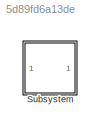
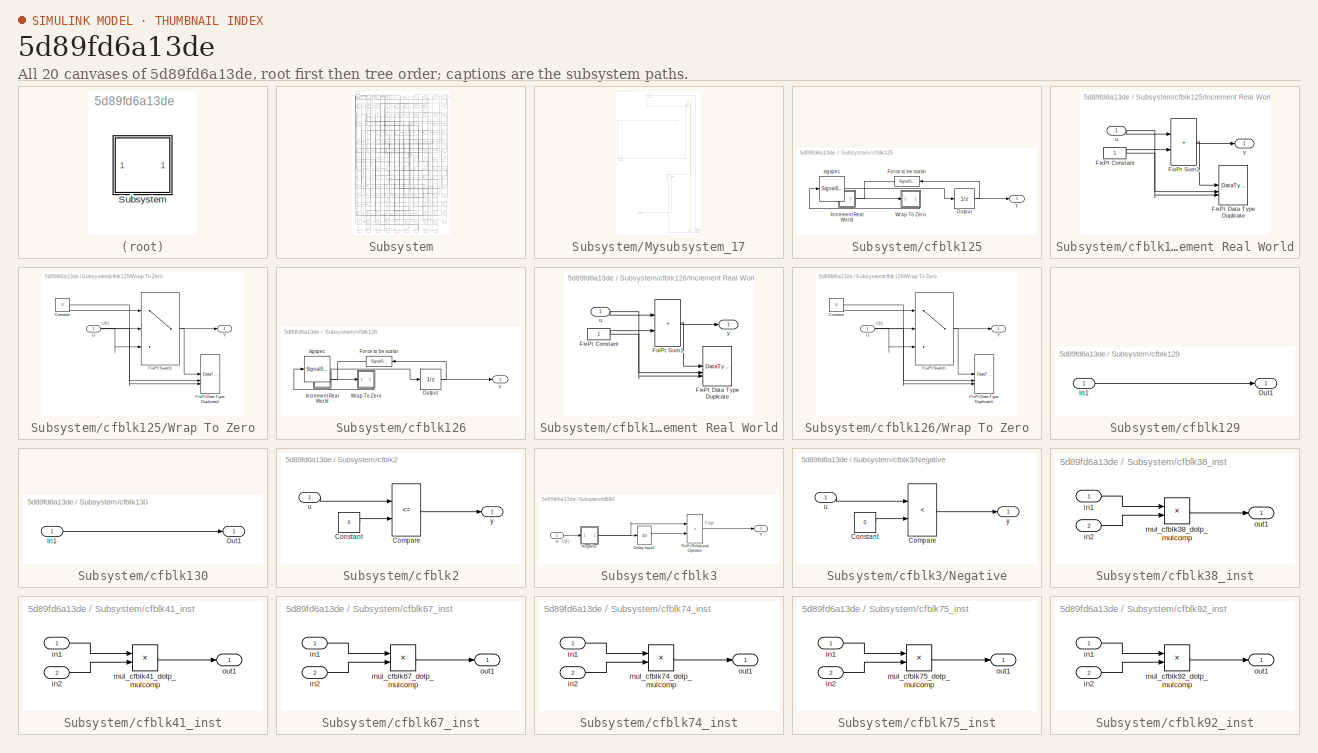
[diagram: thumbnail index - all 20 canvases of the model, root first then tree order]
MODEL slx_5d89fd6a13de
KIND model
CONFIG AbsTol = auto
CONFIG EnableMultiTasking = off
CONFIG FixedStep = auto
CONFIG MaxStep = auto
CONFIG MinStep = auto
CONFIG RelTol = 1e-3
CONFIG SampleTimeConstraint = Unconstrained
CONFIG SolverName = VariableStepAuto
CONFIG StartTime = 0.0
CONFIG StopTime = 10.0
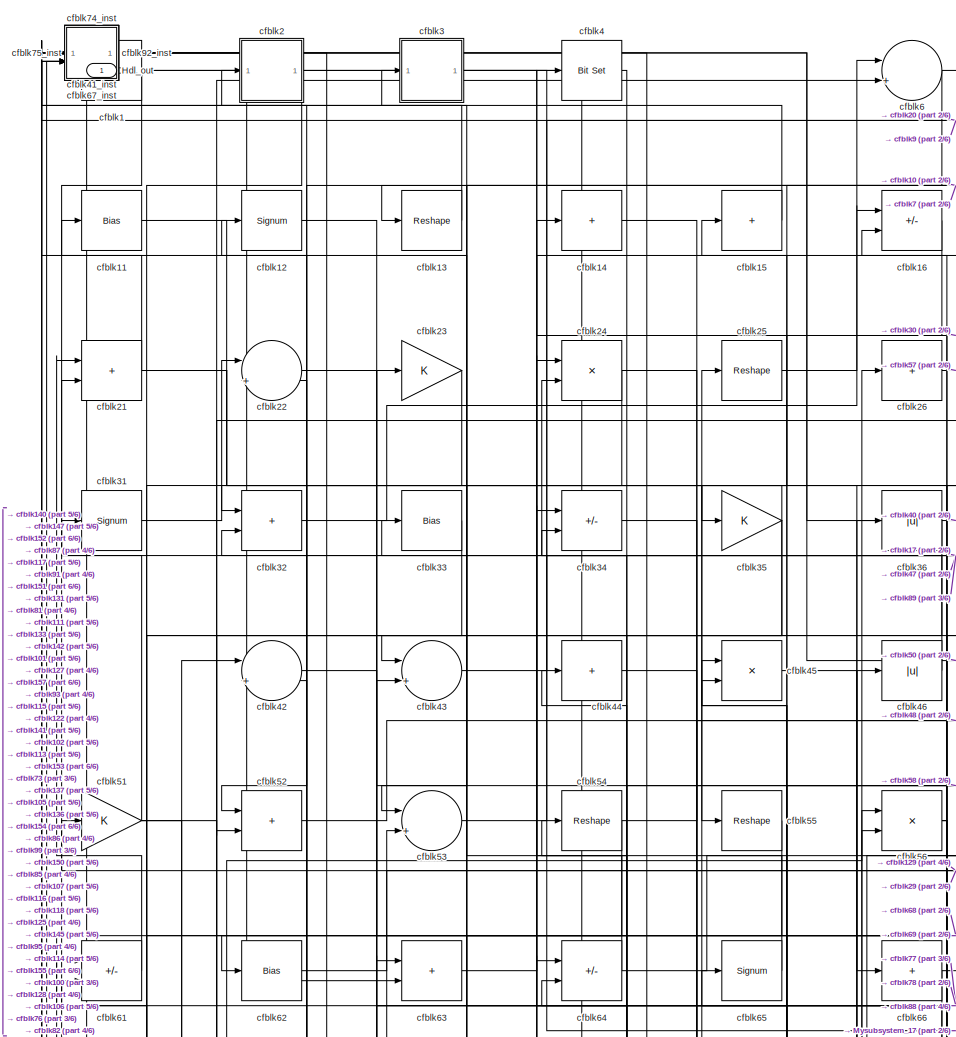
[diagram: Subsystem - part 1/6, top left region]
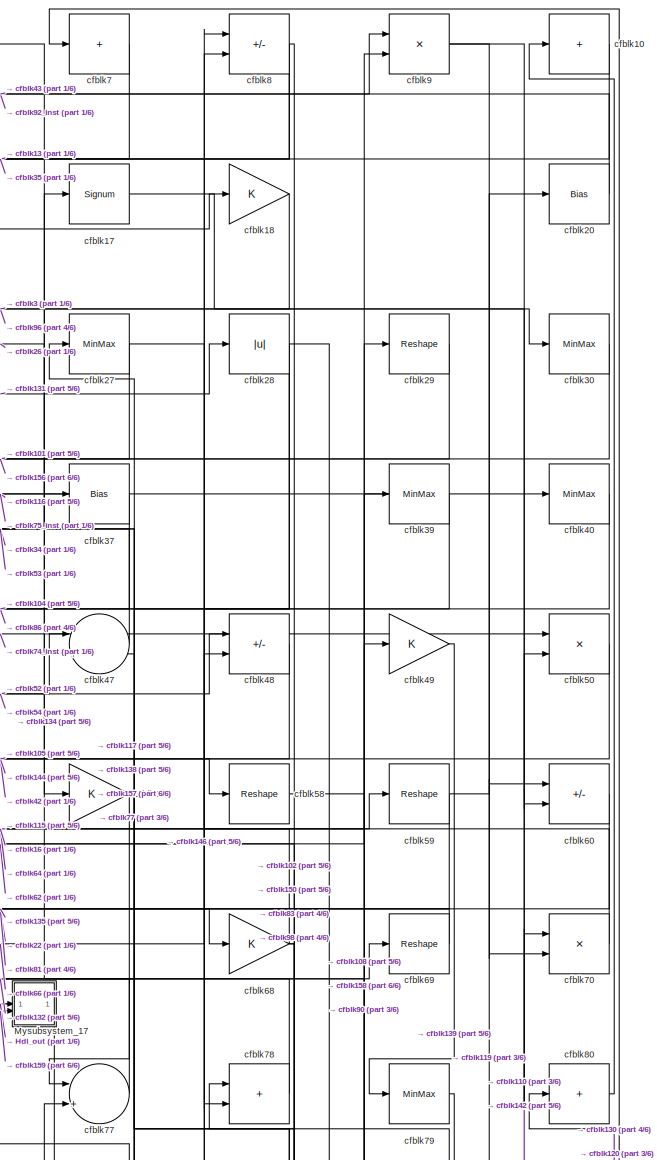
[diagram: Subsystem - part 2/6, top right region]
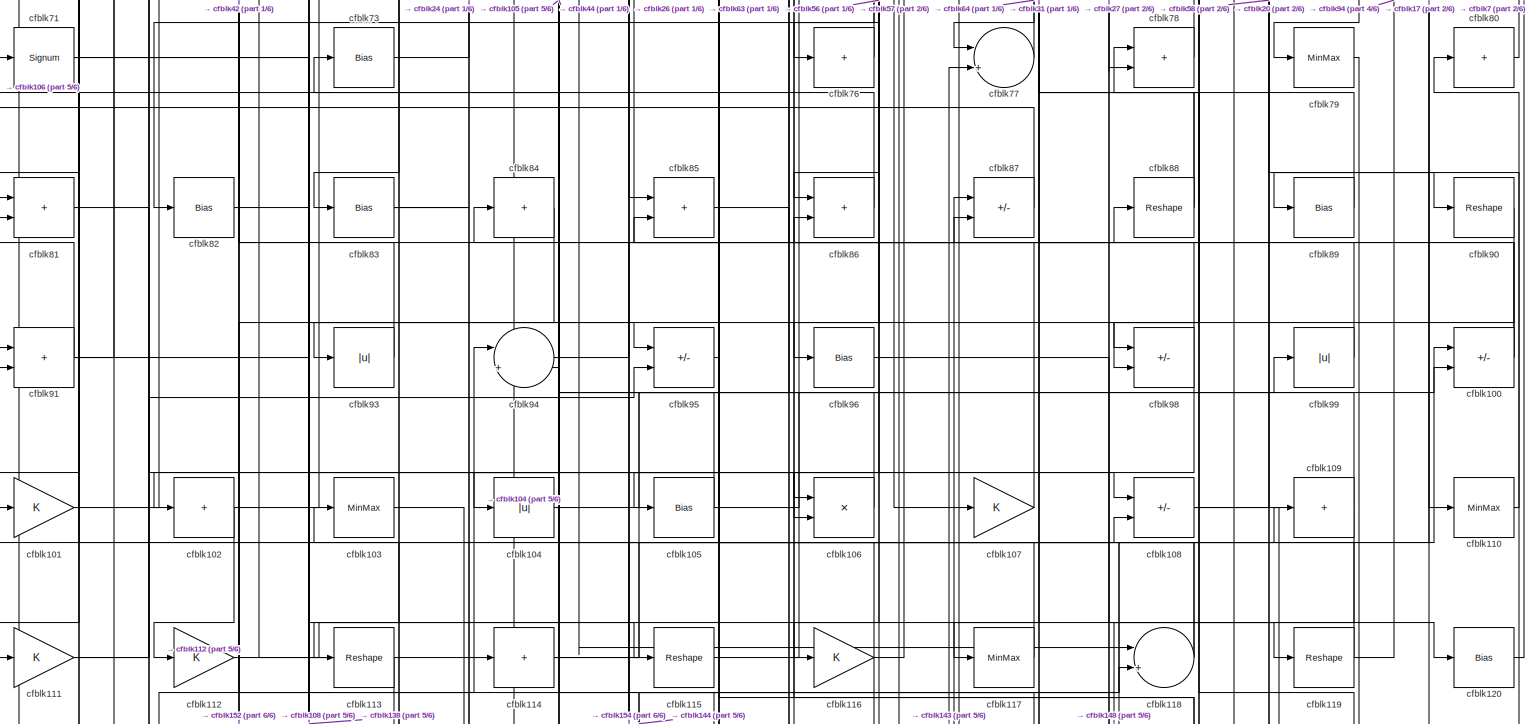
[diagram: Subsystem - part 3/6, full width, middle band]
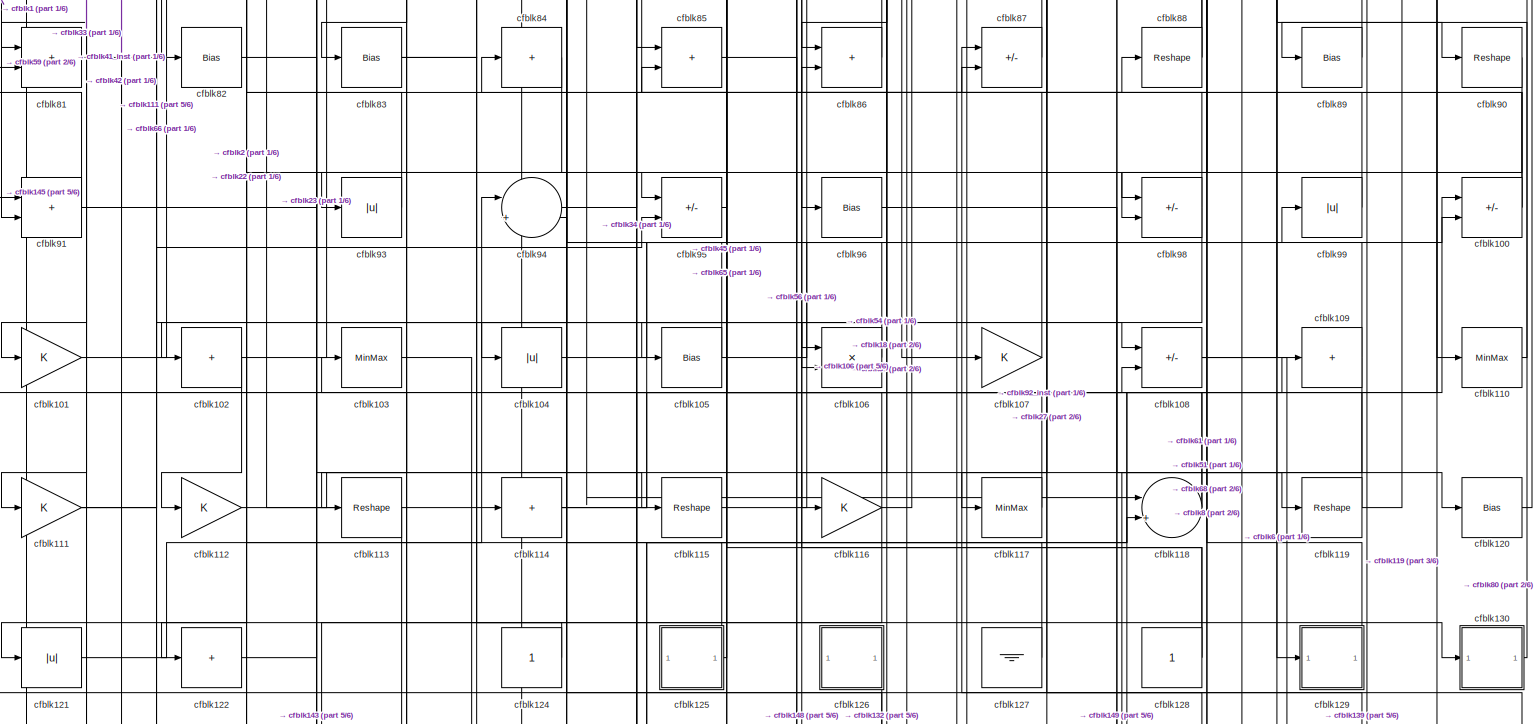
[diagram: Subsystem - part 4/6, full width, middle band]
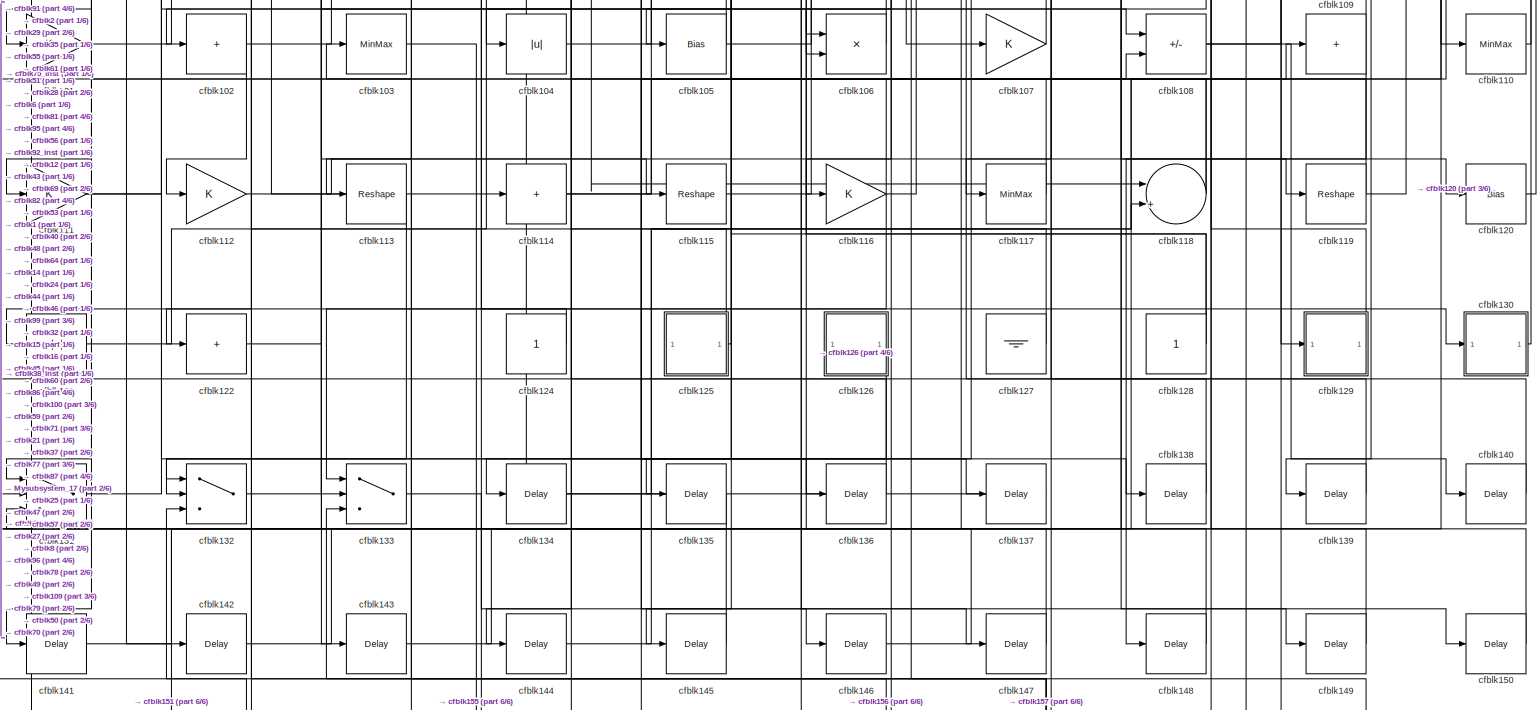
[diagram: Subsystem - part 5/6, full width, bottom band]
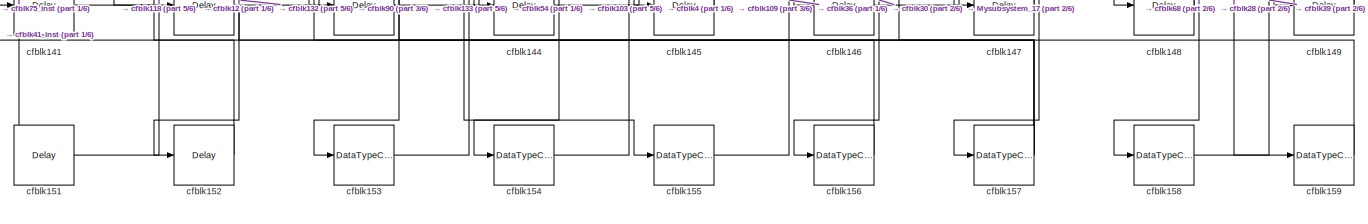
[diagram: Subsystem - part 6/6, full width, bottom band]
BLOCK [SubSystem] Subsystem
BLOCK [Outport] Subsystem/Hdl_out
  OutDataTypeStr = uint8
  SampleTime = 1
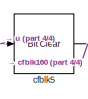
[diagram: Subsystem/Mysubsystem_17 - part 1/4, top center region]
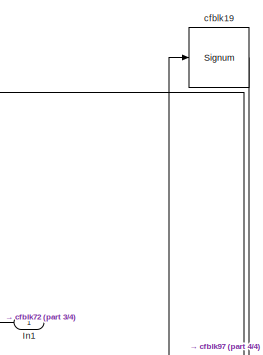
[diagram: Subsystem/Mysubsystem_17 - part 2/4, top right region]
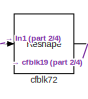
[diagram: Subsystem/Mysubsystem_17 - part 3/4, middle left region]
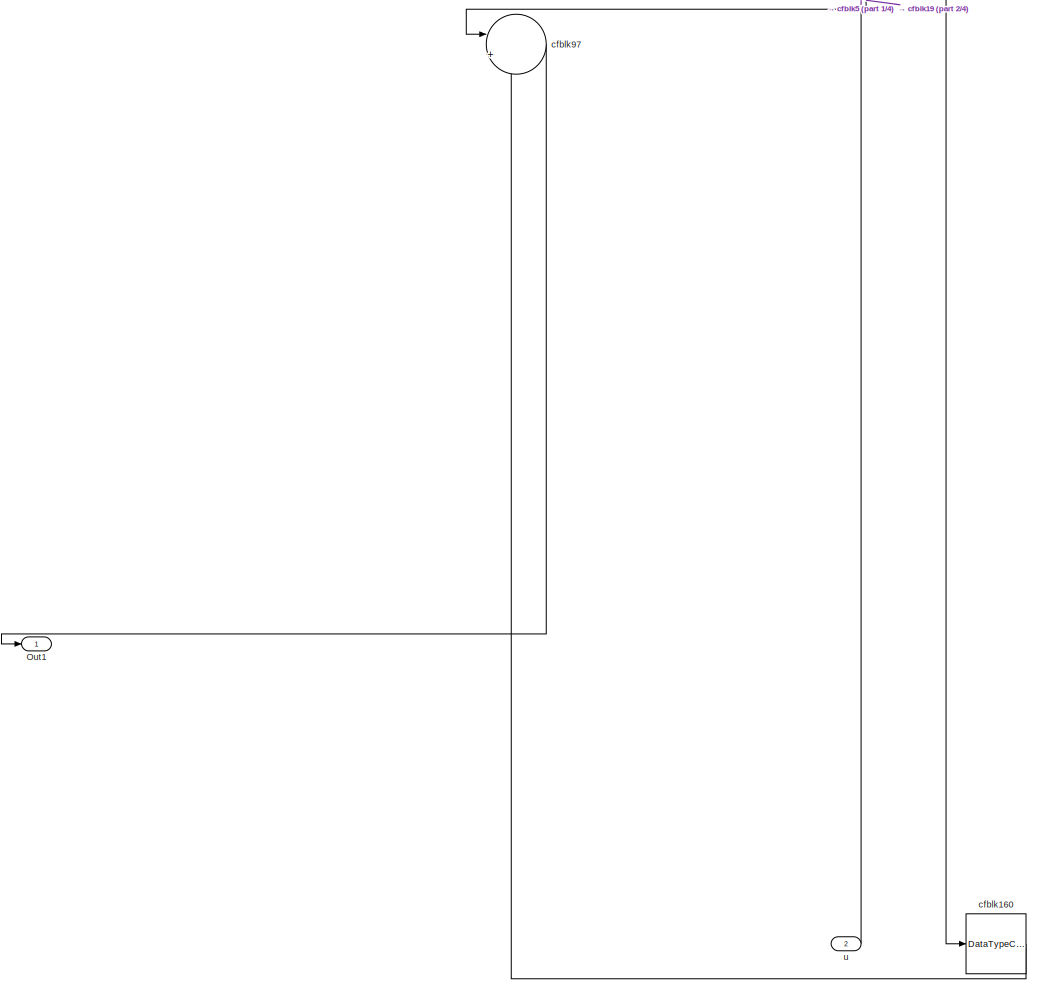
[diagram: Subsystem/Mysubsystem_17 - part 4/4, full width, bottom band]
BLOCK [SubSystem] Subsystem/Mysubsystem_17
BLOCK [Inport] Subsystem/Mysubsystem_17/In1
  OutDataTypeStr = uint8
  PortDimensions = 1
  SampleTime = 1
BLOCK [Outport] Subsystem/Mysubsystem_17/Out1
  SampleTime = 1
BLOCK [DataTypeConversion] Subsystem/Mysubsystem_17/cfblk160
  OutDataTypeStr = uint8
  RndMeth = Floor
  SaturateOnIntegerOverflow = off
BLOCK [Signum] Subsystem/Mysubsystem_17/cfblk19
BLOCK [Reference] Subsystem/Mysubsystem_17/cfblk5  REF=simulink/Logic and Bit
Operations/Bit Clear
  LibrarySourceBlock = hdlsllib/Logic and Bit\nOperations/Bit Clear
  SourceBlock = simulink/Logic and Bit\nOperations/Bit Clear
  SourceType = Bit Clear
BLOCK [Reshape] Subsystem/Mysubsystem_17/cfblk72
BLOCK [Sum] Subsystem/Mysubsystem_17/cfblk97
  Inputs = |++
BLOCK [Inport] Subsystem/Mysubsystem_17/u
  OutDataTypeStr = uint8
  Port = 2
  PortDimensions = 1
  SampleTime = 1
BLOCK [Reference] Subsystem/cfblk1  REF=simulink/Logic and Bit
Operations/Detect
Decrease
  LibrarySourceBlock = hdlsllib/Logic and Bit\nOperations/Detect\nDecrease
  SourceBlock = simulink/Logic and Bit\nOperations/Detect\nDecrease
  SourceType = Detect Decrease
BLOCK [Sum] Subsystem/cfblk10
  IconShape = rectangular
  Inputs = +
  OutDataTypeStr = uint8
BLOCK [Sum] Subsystem/cfblk100
  IconShape = rectangular
  Inputs = +-
  OutDataTypeStr = uint8
BLOCK [Gain] Subsystem/cfblk101
  OutDataTypeStr = uint8
BLOCK [Sum] Subsystem/cfblk102
  IconShape = rectangular
  Inputs = +
  OutDataTypeStr = uint8
BLOCK [MinMax] Subsystem/cfblk103
  OutDataTypeStr = uint8
BLOCK [Abs] Subsystem/cfblk104
  OutDataTypeStr = uint8
  SaturateOnIntegerOverflow = off
BLOCK [Bias] Subsystem/cfblk105
  Bias = 0.0
  SaturateOnIntegerOverflow = off
BLOCK [Product] Subsystem/cfblk106
  Inputs = */
  OutDataTypeStr = uint8
  RndMeth = Zero
  SaturateOnIntegerOverflow = on
BLOCK [Gain] Subsystem/cfblk107
  OutDataTypeStr = uint8
BLOCK [Sum] Subsystem/cfblk108
  IconShape = rectangular
  Inputs = +-
  OutDataTypeStr = uint8
BLOCK [Sum] Subsystem/cfblk109
  IconShape = rectangular
  Inputs = +
  OutDataTypeStr = uint8
BLOCK [Bias] Subsystem/cfblk11
  Bias = 0.0
  SaturateOnIntegerOverflow = off
BLOCK [MinMax] Subsystem/cfblk110
  OutDataTypeStr = uint8
BLOCK [Gain] Subsystem/cfblk111
  OutDataTypeStr = uint8
BLOCK [Gain] Subsystem/cfblk112
  OutDataTypeStr = uint8
BLOCK [Reshape] Subsystem/cfblk113
BLOCK [Sum] Subsystem/cfblk114
  IconShape = rectangular
  Inputs = +
  OutDataTypeStr = uint8
BLOCK [Reshape] Subsystem/cfblk115
BLOCK [Gain] Subsystem/cfblk116
  OutDataTypeStr = uint8
BLOCK [MinMax] Subsystem/cfblk117
  OutDataTypeStr = uint8
BLOCK [Sum] Subsystem/cfblk118
  Inputs = |++
  OutDataTypeStr = uint8
BLOCK [Reshape] Subsystem/cfblk119
BLOCK [Signum] Subsystem/cfblk12
BLOCK [Bias] Subsystem/cfblk120
  Bias = 0.0
  SaturateOnIntegerOverflow = off
BLOCK [Abs] Subsystem/cfblk121
  OutDataTypeStr = uint8
  SaturateOnIntegerOverflow = off
BLOCK [Sum] Subsystem/cfblk122
  IconShape = rectangular
  Inputs = +
  OutDataTypeStr = uint8
BLOCK [Constant] Subsystem/cfblk124
  OutDataTypeStr = uint8
  SampleTime = -1
BLOCK [SubSystem] Subsystem/cfblk125
BLOCK [SignalSpecification] Subsystem/cfblk125/Force to be scalar
  Dimensions = 1
  DisableCoverage = on
BLOCK [SubSystem] Subsystem/cfblk125/Increment Real World
BLOCK [Constant] Subsystem/cfblk125/Increment Real World/FixPt Constant
  DisableCoverage = on
  OutDataTypeStr = Inherit: Inherit via back propagation
  SampleTime = -1
BLOCK [DataTypeDuplicate] Subsystem/cfblk125/Increment Real World/FixPt Data Type Duplicate
  DisableCoverage = on
  NumInputPorts = 3
BLOCK [Sum] Subsystem/cfblk125/Increment Real World/FixPt Sum1
  IconShape = rectangular
  InputSameDT = on
  LockScale = on
  OutDataTypeStr = Inherit: Inherit via back propagation
BLOCK [Inport] Subsystem/cfblk125/Increment Real World/u
  OutDataTypeStr = uint8
  SampleTime = 1
BLOCK [Outport] Subsystem/cfblk125/Increment Real World/y
  SampleTime = 1
BLOCK [UnitDelay] Subsystem/cfblk125/Output
  HasFrameUpgradeWarning = on
  InitialCondition = 0.0
  SampleTime = tsamp
BLOCK [SubSystem] Subsystem/cfblk125/Wrap To Zero
BLOCK [Constant] Subsystem/cfblk125/Wrap To Zero/Constant
  DisableCoverage = on
  OutDataTypeStr = Inherit: Inherit via back propagation
  SampleTime = -1
  Value = 0
BLOCK [DataTypeDuplicate] Subsystem/cfblk125/Wrap To Zero/FixPt Data Type Duplicate1
  DisableCoverage = on
  NumInputPorts = 3
BLOCK [Switch] Subsystem/cfblk125/Wrap To Zero/FixPt Switch
  Criteria = u2 > Threshold
  InputSameDT = off
  OutDataTypeStr = Inherit: Inherit via back propagation
  SaturateOnIntegerOverflow = off
  Threshold = Threshold
  ZeroCross = off
BLOCK [Inport] Subsystem/cfblk125/Wrap To Zero/U
  OutDataTypeStr = uint8
  SampleTime = 1
BLOCK [Outport] Subsystem/cfblk125/Wrap To Zero/Y
  SampleTime = 1
BLOCK [SignalSpecification] Subsystem/cfblk125/sigspec
  Dimensions = 1
  OutDataTypeStr = uint8
BLOCK [Outport] Subsystem/cfblk125/y
  SampleTime = 1
BLOCK [SubSystem] Subsystem/cfblk126
BLOCK [SignalSpecification] Subsystem/cfblk126/Force to be scalar
  Dimensions = 1
  DisableCoverage = on
BLOCK [SubSystem] Subsystem/cfblk126/Increment Real World
BLOCK [Constant] Subsystem/cfblk126/Increment Real World/FixPt Constant
  DisableCoverage = on
  OutDataTypeStr = Inherit: Inherit via back propagation
  SampleTime = -1
BLOCK [DataTypeDuplicate] Subsystem/cfblk126/Increment Real World/FixPt Data Type Duplicate
  DisableCoverage = on
  NumInputPorts = 3
BLOCK [Sum] Subsystem/cfblk126/Increment Real World/FixPt Sum1
  IconShape = rectangular
  InputSameDT = on
  LockScale = on
  OutDataTypeStr = Inherit: Inherit via back propagation
BLOCK [Inport] Subsystem/cfblk126/Increment Real World/u
  OutDataTypeStr = uint16
  SampleTime = 1
BLOCK [Outport] Subsystem/cfblk126/Increment Real World/y
  SampleTime = 1
BLOCK [UnitDelay] Subsystem/cfblk126/Output
  HasFrameUpgradeWarning = on
  InitialCondition = 0.0
  SampleTime = tsamp
BLOCK [SubSystem] Subsystem/cfblk126/Wrap To Zero
BLOCK [Constant] Subsystem/cfblk126/Wrap To Zero/Constant
  DisableCoverage = on
  OutDataTypeStr = Inherit: Inherit via back propagation
  SampleTime = -1
  Value = 0
BLOCK [DataTypeDuplicate] Subsystem/cfblk126/Wrap To Zero/FixPt Data Type Duplicate1
  DisableCoverage = on
  NumInputPorts = 3
BLOCK [Switch] Subsystem/cfblk126/Wrap To Zero/FixPt Switch
  Criteria = u2 > Threshold
  InputSameDT = off
  OutDataTypeStr = Inherit: Inherit via back propagation
  SaturateOnIntegerOverflow = off
  Threshold = Threshold
  ZeroCross = off
BLOCK [Inport] Subsystem/cfblk126/Wrap To Zero/U
  OutDataTypeStr = uint16
  SampleTime = 1
BLOCK [Outport] Subsystem/cfblk126/Wrap To Zero/Y
  SampleTime = 1
BLOCK [SignalSpecification] Subsystem/cfblk126/sigspec
  Dimensions = 1
  OutDataTypeStr = uint16
BLOCK [Outport] Subsystem/cfblk126/y
  SampleTime = 1
BLOCK [Ground] Subsystem/cfblk127
BLOCK [Constant] Subsystem/cfblk128
  OutDataTypeStr = uint8
  SampleTime = -1
BLOCK [SubSystem] Subsystem/cfblk129
BLOCK [Inport] Subsystem/cfblk129/In1
  OutDataTypeStr = uint8
  PortDimensions = 1
  SampleTime = 1
BLOCK [Outport] Subsystem/cfblk129/Out1
  SampleTime = 1
BLOCK [Reshape] Subsystem/cfblk13
BLOCK [SubSystem] Subsystem/cfblk130
BLOCK [Inport] Subsystem/cfblk130/In1
  OutDataTypeStr = uint8
  PortDimensions = 1
  SampleTime = 1
BLOCK [Outport] Subsystem/cfblk130/Out1
  SampleTime = 1
BLOCK [Switch] Subsystem/cfblk131
  InputSameDT = off
  OutDataTypeStr = uint8
  SaturateOnIntegerOverflow = off
BLOCK [Switch] Subsystem/cfblk132
  InputSameDT = off
  OutDataTypeStr = uint8
  SaturateOnIntegerOverflow = off
BLOCK [Switch] Subsystem/cfblk133
  InputSameDT = off
  OutDataTypeStr = uint8
  SaturateOnIntegerOverflow = off
BLOCK [Delay] Subsystem/cfblk134
  InputPortMap = u0
  SampleTime = 1
BLOCK [Delay] Subsystem/cfblk135
  InputPortMap = u0
  SampleTime = 1
BLOCK [Delay] Subsystem/cfblk136
  InputPortMap = u0
  SampleTime = 1
BLOCK [Delay] Subsystem/cfblk137
  InputPortMap = u0
  SampleTime = 1
BLOCK [Delay] Subsystem/cfblk138
  InputPortMap = u0
  SampleTime = 1
BLOCK [Delay] Subsystem/cfblk139
  InputPortMap = u0
  SampleTime = 1
BLOCK [Sum] Subsystem/cfblk14
  IconShape = rectangular
  Inputs = +
  OutDataTypeStr = uint8
BLOCK [Delay] Subsystem/cfblk140
  InputPortMap = u0
  SampleTime = 1
BLOCK [Delay] Subsystem/cfblk141
  InputPortMap = u0
  SampleTime = 1
BLOCK [Delay] Subsystem/cfblk142
  InputPortMap = u0
  SampleTime = 1
BLOCK [Delay] Subsystem/cfblk143
  InputPortMap = u0
  SampleTime = 1
BLOCK [Delay] Subsystem/cfblk144
  InputPortMap = u0
  SampleTime = 1
BLOCK [Delay] Subsystem/cfblk145
  InputPortMap = u0
  SampleTime = 1
BLOCK [Delay] Subsystem/cfblk146
  InputPortMap = u0
  SampleTime = 1
BLOCK [Delay] Subsystem/cfblk147
  InputPortMap = u0
  SampleTime = 1
BLOCK [Delay] Subsystem/cfblk148
  InputPortMap = u0
  SampleTime = 1
BLOCK [Delay] Subsystem/cfblk149
  InputPortMap = u0
  SampleTime = 1
BLOCK [Sum] Subsystem/cfblk15
  IconShape = rectangular
  Inputs = +
  OutDataTypeStr = uint8
BLOCK [Delay] Subsystem/cfblk150
  InputPortMap = u0
  SampleTime = 1
BLOCK [Delay] Subsystem/cfblk151
  InputPortMap = u0
  SampleTime = 1
BLOCK [Delay] Subsystem/cfblk152
  InputPortMap = u0
  SampleTime = 1
BLOCK [DataTypeConversion] Subsystem/cfblk153
  OutDataTypeStr = uint8
  RndMeth = Floor
  SaturateOnIntegerOverflow = off
BLOCK [DataTypeConversion] Subsystem/cfblk154
  OutDataTypeStr = uint8
  RndMeth = Floor
  SaturateOnIntegerOverflow = off
BLOCK [DataTypeConversion] Subsystem/cfblk155
  OutDataTypeStr = uint8
  RndMeth = Floor
  SaturateOnIntegerOverflow = off
BLOCK [DataTypeConversion] Subsystem/cfblk156
  OutDataTypeStr = uint8
  RndMeth = Floor
  SaturateOnIntegerOverflow = off
BLOCK [DataTypeConversion] Subsystem/cfblk157
  OutDataTypeStr = uint8
  RndMeth = Floor
  SaturateOnIntegerOverflow = off
BLOCK [DataTypeConversion] Subsystem/cfblk158
  OutDataTypeStr = uint8
  RndMeth = Floor
  SaturateOnIntegerOverflow = off
BLOCK [DataTypeConversion] Subsystem/cfblk159
  OutDataTypeStr = uint8
  RndMeth = Floor
  SaturateOnIntegerOverflow = off
BLOCK [Sum] Subsystem/cfblk16
  IconShape = rectangular
  Inputs = +-
  OutDataTypeStr = uint8
BLOCK [Signum] Subsystem/cfblk17
BLOCK [Gain] Subsystem/cfblk18
  OutDataTypeStr = uint8
BLOCK [SubSystem] Subsystem/cfblk2
BLOCK [RelationalOperator] Subsystem/cfblk2/Compare
  Operator = <=
  OutDataTypeStr = fixdt(0, 8)
BLOCK [Constant] Subsystem/cfblk2/Constant
  DisableCoverage = on
  OutDataTypeStr = Inherit: Inherit via back propagation
  PreserveConstantTs = on
  SampleTime = -1
  Value = 0
BLOCK [Inport] Subsystem/cfblk2/u
  OutDataTypeStr = uint8
  SampleTime = 1
BLOCK [Outport] Subsystem/cfblk2/y
  SampleTime = 1
BLOCK [Bias] Subsystem/cfblk20
  Bias = 0.0
  SaturateOnIntegerOverflow = off
BLOCK [Sum] Subsystem/cfblk21
  IconShape = rectangular
  OutDataTypeStr = uint8
BLOCK [Sum] Subsystem/cfblk22
  Inputs = |++
  OutDataTypeStr = uint8
BLOCK [Gain] Subsystem/cfblk23
  OutDataTypeStr = uint8
BLOCK [Product] Subsystem/cfblk24
  Inputs = */
  OutDataTypeStr = uint8
  RndMeth = Zero
  SaturateOnIntegerOverflow = on
BLOCK [Reshape] Subsystem/cfblk25
BLOCK [Sum] Subsystem/cfblk26
  IconShape = rectangular
  Inputs = +
  OutDataTypeStr = uint8
BLOCK [MinMax] Subsystem/cfblk27
  OutDataTypeStr = uint8
BLOCK [Abs] Subsystem/cfblk28
  OutDataTypeStr = uint8
  SaturateOnIntegerOverflow = off
BLOCK [Reshape] Subsystem/cfblk29
BLOCK [SubSystem] Subsystem/cfblk3
BLOCK [UnitDelay] Subsystem/cfblk3/Delay Input1
  Description = Store in Global RAM
  DisableCoverage = on
  HasFrameUpgradeWarning = on
  InitialCondition = vinit
  SampleTime = -1
BLOCK [RelationalOperator] Subsystem/cfblk3/FixPt Relational Operator
  InputSameDT = off
  Operator = >
  OutDataTypeStr = fixdt(0, 8)
  ZeroCross = off
BLOCK [SubSystem] Subsystem/cfblk3/Negative
BLOCK [RelationalOperator] Subsystem/cfblk3/Negative/Compare
  Operator = <
  OutDataTypeStr = boolean
  ZeroCross = off
BLOCK [Constant] Subsystem/cfblk3/Negative/Constant
  DisableCoverage = on
  OutDataTypeStr = Inherit: Inherit via back propagation
  PreserveConstantTs = on
  SampleTime = -1
  Value = 0
BLOCK [Inport] Subsystem/cfblk3/Negative/u
  OutDataTypeStr = uint8
  SampleTime = 1
BLOCK [Outport] Subsystem/cfblk3/Negative/y
  SampleTime = 1
BLOCK [Inport] Subsystem/cfblk3/U
  OutDataTypeStr = uint8
  SampleTime = 1
BLOCK [Outport] Subsystem/cfblk3/Y
  SampleTime = 1
BLOCK [MinMax] Subsystem/cfblk30
  OutDataTypeStr = uint8
BLOCK [Signum] Subsystem/cfblk31
BLOCK [Sum] Subsystem/cfblk32
  IconShape = rectangular
  OutDataTypeStr = uint8
BLOCK [Bias] Subsystem/cfblk33
  Bias = 0.0
  SaturateOnIntegerOverflow = off
BLOCK [Sum] Subsystem/cfblk34
  IconShape = rectangular
  Inputs = +-
  OutDataTypeStr = uint8
BLOCK [Gain] Subsystem/cfblk35
  OutDataTypeStr = uint8
BLOCK [Abs] Subsystem/cfblk36
  OutDataTypeStr = uint8
  SaturateOnIntegerOverflow = off
BLOCK [Bias] Subsystem/cfblk37
  Bias = 0.0
  SaturateOnIntegerOverflow = off
BLOCK [SubSystem] Subsystem/cfblk38_inst
BLOCK [Inport] Subsystem/cfblk38_inst/in1
  OutDataTypeStr = uint8
  SampleTime = 1
BLOCK [Inport] Subsystem/cfblk38_inst/in2
  OutDataTypeStr = uint8
  Port = 2
  SampleTime = 1
BLOCK [Product] Subsystem/cfblk38_inst/mul_cfblk38_dotp_mulcomp
  Inputs = **
  OutDataTypeStr = uint8
  SampleTime = 1
BLOCK [Outport] Subsystem/cfblk38_inst/out1
  OutDataTypeStr = uint8
  SampleTime = 1
BLOCK [MinMax] Subsystem/cfblk39
  OutDataTypeStr = uint8
BLOCK [Reference] Subsystem/cfblk4  REF=simulink/Logic and Bit
Operations/Bit Set
  LibrarySourceBlock = hdlsllib/Logic and Bit\nOperations/Bit Set
  SourceBlock = simulink/Logic and Bit\nOperations/Bit Set
  SourceType = Bit Set
BLOCK [MinMax] Subsystem/cfblk40
  OutDataTypeStr = uint8
BLOCK [SubSystem] Subsystem/cfblk41_inst
BLOCK [Inport] Subsystem/cfblk41_inst/in1
  OutDataTypeStr = uint8
  SampleTime = 1
BLOCK [Inport] Subsystem/cfblk41_inst/in2
  OutDataTypeStr = uint8
  Port = 2
  SampleTime = 1
BLOCK [Product] Subsystem/cfblk41_inst/mul_cfblk41_dotp_mulcomp
  Inputs = **
  OutDataTypeStr = uint8
  SampleTime = 1
BLOCK [Outport] Subsystem/cfblk41_inst/out1
  OutDataTypeStr = uint8
  SampleTime = 1
BLOCK [Sum] Subsystem/cfblk42
  Inputs = |++
  OutDataTypeStr = uint8
BLOCK [Sum] Subsystem/cfblk43
  Inputs = |++
  OutDataTypeStr = uint8
BLOCK [Sum] Subsystem/cfblk44
  IconShape = rectangular
  Inputs = +
  OutDataTypeStr = uint8
BLOCK [Product] Subsystem/cfblk45
  Inputs = */
  OutDataTypeStr = uint8
  RndMeth = Zero
  SaturateOnIntegerOverflow = on
BLOCK [Abs] Subsystem/cfblk46
  OutDataTypeStr = uint8
  SaturateOnIntegerOverflow = off
BLOCK [Sum] Subsystem/cfblk47
  Inputs = |++
  OutDataTypeStr = uint8
BLOCK [Sum] Subsystem/cfblk48
  IconShape = rectangular
  Inputs = +-
  OutDataTypeStr = uint8
BLOCK [Gain] Subsystem/cfblk49
  OutDataTypeStr = uint8
BLOCK [Product] Subsystem/cfblk50
  Inputs = */
  OutDataTypeStr = uint8
  RndMeth = Zero
  SaturateOnIntegerOverflow = on
BLOCK [Gain] Subsystem/cfblk51
  OutDataTypeStr = uint8
BLOCK [Sum] Subsystem/cfblk52
  IconShape = rectangular
  OutDataTypeStr = uint8
BLOCK [Sum] Subsystem/cfblk53
  Inputs = |++
  OutDataTypeStr = uint8
BLOCK [Reshape] Subsystem/cfblk54
BLOCK [Reshape] Subsystem/cfblk55
BLOCK [Product] Subsystem/cfblk56
  Inputs = */
  OutDataTypeStr = uint8
  RndMeth = Zero
  SaturateOnIntegerOverflow = on
BLOCK [Gain] Subsystem/cfblk57
  OutDataTypeStr = uint8
BLOCK [Reshape] Subsystem/cfblk58
BLOCK [Reshape] Subsystem/cfblk59
BLOCK [Sum] Subsystem/cfblk6
  Inputs = |++
  OutDataTypeStr = uint8
BLOCK [Sum] Subsystem/cfblk60
  IconShape = rectangular
  Inputs = +-
  OutDataTypeStr = uint8
BLOCK [Sum] Subsystem/cfblk61
  IconShape = rectangular
  Inputs = +-
  OutDataTypeStr = uint8
BLOCK [Bias] Subsystem/cfblk62
  Bias = 0.0
  SaturateOnIntegerOverflow = off
BLOCK [Sum] Subsystem/cfblk63
  IconShape = rectangular
  OutDataTypeStr = uint8
BLOCK [Sum] Subsystem/cfblk64
  IconShape = rectangular
  Inputs = +-
  OutDataTypeStr = uint8
BLOCK [Signum] Subsystem/cfblk65
BLOCK [Sum] Subsystem/cfblk66
  IconShape = rectangular
  Inputs = +
  OutDataTypeStr = uint8
BLOCK [SubSystem] Subsystem/cfblk67_inst
BLOCK [Inport] Subsystem/cfblk67_inst/in1
  OutDataTypeStr = uint8
  SampleTime = 1
BLOCK [Inport] Subsystem/cfblk67_inst/in2
  OutDataTypeStr = uint8
  Port = 2
  SampleTime = 1
BLOCK [Product] Subsystem/cfblk67_inst/mul_cfblk67_dotp_mulcomp
  Inputs = **
  OutDataTypeStr = uint8
  SampleTime = 1
BLOCK [Outport] Subsystem/cfblk67_inst/out1
  OutDataTypeStr = uint8
  SampleTime = 1
BLOCK [Gain] Subsystem/cfblk68
  OutDataTypeStr = uint8
BLOCK [Reshape] Subsystem/cfblk69
BLOCK [Sum] Subsystem/cfblk7
  IconShape = rectangular
  Inputs = +
  OutDataTypeStr = uint8
BLOCK [Product] Subsystem/cfblk70
  Inputs = */
  OutDataTypeStr = uint8
  RndMeth = Zero
  SaturateOnIntegerOverflow = on
BLOCK [Signum] Subsystem/cfblk71
BLOCK [Bias] Subsystem/cfblk73
  Bias = 0.0
  SaturateOnIntegerOverflow = off
BLOCK [SubSystem] Subsystem/cfblk74_inst
BLOCK [Inport] Subsystem/cfblk74_inst/in1
  OutDataTypeStr = uint8
  SampleTime = 1
BLOCK [Inport] Subsystem/cfblk74_inst/in2
  OutDataTypeStr = uint8
  Port = 2
  SampleTime = 1
BLOCK [Product] Subsystem/cfblk74_inst/mul_cfblk74_dotp_mulcomp
  Inputs = **
  OutDataTypeStr = uint8
  SampleTime = 1
BLOCK [Outport] Subsystem/cfblk74_inst/out1
  OutDataTypeStr = uint8
  SampleTime = 1
BLOCK [SubSystem] Subsystem/cfblk75_inst
BLOCK [Inport] Subsystem/cfblk75_inst/in1
  OutDataTypeStr = uint8
  SampleTime = 1
BLOCK [Inport] Subsystem/cfblk75_inst/in2
  OutDataTypeStr = uint8
  Port = 2
  SampleTime = 1
BLOCK [Product] Subsystem/cfblk75_inst/mul_cfblk75_dotp_mulcomp
  Inputs = **
  OutDataTypeStr = uint8
  SampleTime = 1
BLOCK [Outport] Subsystem/cfblk75_inst/out1
  OutDataTypeStr = uint8
  SampleTime = 1
BLOCK [Sum] Subsystem/cfblk76
  IconShape = rectangular
  Inputs = +
  OutDataTypeStr = uint8
BLOCK [Sum] Subsystem/cfblk77
  Inputs = |++
  OutDataTypeStr = uint8
BLOCK [Sum] Subsystem/cfblk78
  IconShape = rectangular
  OutDataTypeStr = uint8
BLOCK [MinMax] Subsystem/cfblk79
  OutDataTypeStr = uint8
BLOCK [Sum] Subsystem/cfblk8
  IconShape = rectangular
  Inputs = +-
  OutDataTypeStr = uint8
BLOCK [Sum] Subsystem/cfblk80
  IconShape = rectangular
  Inputs = +
  OutDataTypeStr = uint8
BLOCK [Sum] Subsystem/cfblk81
  IconShape = rectangular
  OutDataTypeStr = uint8
BLOCK [Bias] Subsystem/cfblk82
  Bias = 0.0
  SaturateOnIntegerOverflow = off
BLOCK [Bias] Subsystem/cfblk83
  Bias = 0.0
  SaturateOnIntegerOverflow = off
BLOCK [Sum] Subsystem/cfblk84
  IconShape = rectangular
  Inputs = +
  OutDataTypeStr = uint8
BLOCK [Sum] Subsystem/cfblk85
  IconShape = rectangular
  OutDataTypeStr = uint8
BLOCK [Sum] Subsystem/cfblk86
  IconShape = rectangular
  OutDataTypeStr = uint8
BLOCK [Sum] Subsystem/cfblk87
  IconShape = rectangular
  Inputs = +-
  OutDataTypeStr = uint8
BLOCK [Reshape] Subsystem/cfblk88
BLOCK [Bias] Subsystem/cfblk89
  Bias = 0.0
  SaturateOnIntegerOverflow = off
BLOCK [Product] Subsystem/cfblk9
  Inputs = */
  OutDataTypeStr = uint8
  RndMeth = Zero
  SaturateOnIntegerOverflow = on
BLOCK [Reshape] Subsystem/cfblk90
BLOCK [Sum] Subsystem/cfblk91
  IconShape = rectangular
  OutDataTypeStr = uint8
BLOCK [SubSystem] Subsystem/cfblk92_inst
BLOCK [Inport] Subsystem/cfblk92_inst/in1
  OutDataTypeStr = uint8
  SampleTime = 1
BLOCK [Inport] Subsystem/cfblk92_inst/in2
  OutDataTypeStr = uint8
  Port = 2
  SampleTime = 1
BLOCK [Product] Subsystem/cfblk92_inst/mul_cfblk92_dotp_mulcomp
  Inputs = **
  OutDataTypeStr = uint8
  SampleTime = 1
BLOCK [Outport] Subsystem/cfblk92_inst/out1
  OutDataTypeStr = uint8
  SampleTime = 1
BLOCK [Abs] Subsystem/cfblk93
  OutDataTypeStr = uint8
  SaturateOnIntegerOverflow = off
BLOCK [Sum] Subsystem/cfblk94
  Inputs = |++
  OutDataTypeStr = uint8
BLOCK [Sum] Subsystem/cfblk95
  IconShape = rectangular
  Inputs = +-
  OutDataTypeStr = uint8
BLOCK [Bias] Subsystem/cfblk96
  Bias = 0.0
  SaturateOnIntegerOverflow = off
BLOCK [Sum] Subsystem/cfblk98
  IconShape = rectangular
  Inputs = +-
  OutDataTypeStr = uint8
BLOCK [Abs] Subsystem/cfblk99
  OutDataTypeStr = uint8
  SaturateOnIntegerOverflow = off
ANNOTATION Subsystem/cfblk125/Wrap To Zero: U(k)
ANNOTATION Subsystem/cfblk126/Wrap To Zero: U(k)
ANNOTATION Subsystem/cfblk3: Edge
ANNOTATION Subsystem/cfblk3: U(k)
LINE Subsystem/Mysubsystem_17/In1:1 -> Subsystem/Mysubsystem_17/cfblk72:1
LINE Subsystem/Mysubsystem_17/cfblk160:1 -> Subsystem/Mysubsystem_17/cfblk97:2
LINE Subsystem/Mysubsystem_17/cfblk19:1 -> Subsystem/Mysubsystem_17/cfblk97:1
LINE Subsystem/Mysubsystem_17/cfblk5:1 -> Subsystem/Mysubsystem_17/cfblk160:1
LINE Subsystem/Mysubsystem_17/cfblk72:1 -> Subsystem/Mysubsystem_17/cfblk19:1
LINE Subsystem/Mysubsystem_17/cfblk97:1 -> Subsystem/Mysubsystem_17/Out1:1
LINE Subsystem/Mysubsystem_17/u:1 -> Subsystem/Mysubsystem_17/cfblk5:1
NET Subsystem/Mysubsystem_17:1 -> Subsystem/Hdl_out:1, Subsystem/cfblk134:1
NET Subsystem/cfblk100:1 -> Subsystem/cfblk26:1, Subsystem/cfblk42:2
LINE Subsystem/cfblk101:1 -> Subsystem/cfblk56:1
NET Subsystem/cfblk102:1 -> Subsystem/cfblk112:1, Subsystem/cfblk53:2
LINE Subsystem/cfblk103:1 -> Subsystem/cfblk155:1
LINE Subsystem/cfblk104:1 -> Subsystem/cfblk99:1
NET Subsystem/cfblk105:1 -> Subsystem/cfblk100:1, Subsystem/cfblk32:2
LINE Subsystem/cfblk106:1 -> Subsystem/cfblk71:1
LINE Subsystem/cfblk107:1 -> Subsystem/cfblk25:1
NET Subsystem/cfblk108:1 -> Subsystem/cfblk140:1, Subsystem/cfblk49:1
NET Subsystem/cfblk109:1 -> Subsystem/cfblk148:1, Subsystem/cfblk73:1
LINE Subsystem/cfblk10:1 -> Subsystem/cfblk13:1
LINE Subsystem/cfblk110:1 -> Subsystem/cfblk89:1
NET Subsystem/cfblk111:1 -> Subsystem/cfblk6:2, Subsystem/cfblk95:2
LINE Subsystem/cfblk112:1 -> Subsystem/cfblk120:1
LINE Subsystem/cfblk113:1 -> Subsystem/cfblk132:2
NET Subsystem/cfblk114:1 -> Subsystem/cfblk108:2, Subsystem/cfblk46:1
LINE Subsystem/cfblk115:1 -> Subsystem/cfblk59:1
NET Subsystem/cfblk116:1 -> Subsystem/cfblk133:1, Subsystem/cfblk37:1, Subsystem/cfblk45:1
LINE Subsystem/cfblk117:1 -> Subsystem/cfblk75_inst:2
NET Subsystem/cfblk118:1 -> Subsystem/cfblk15:1, Subsystem/cfblk61:2
NET Subsystem/cfblk119:1 -> Subsystem/cfblk20:1, Subsystem/cfblk94:2
LINE Subsystem/cfblk11:1 -> Subsystem/cfblk55:1
LINE Subsystem/cfblk120:1 -> Subsystem/cfblk7:1
LINE Subsystem/cfblk121:1 -> Subsystem/cfblk94:1
LINE Subsystem/cfblk122:1 -> Subsystem/cfblk23:1
LINE Subsystem/cfblk124:1 -> Subsystem/cfblk121:1
NET Subsystem/cfblk125:1 -> Subsystem/cfblk45:2, Subsystem/cfblk84:1
LINE Subsystem/cfblk126:1 -> Subsystem/cfblk132:1
LINE Subsystem/cfblk127:1 -> Subsystem/cfblk22:2
NET Subsystem/cfblk128:1 -> Subsystem/cfblk56:2, Subsystem/cfblk85:2
LINE Subsystem/cfblk129/In1:1 -> Subsystem/cfblk129/Out1:1
LINE Subsystem/cfblk129:1 -> Subsystem/cfblk51:1
LINE Subsystem/cfblk12:1 -> Subsystem/cfblk115:1
LINE Subsystem/cfblk130/In1:1 -> Subsystem/cfblk130/Out1:1
LINE Subsystem/cfblk130:1 -> Subsystem/cfblk80:1
LINE Subsystem/cfblk131:1 -> Subsystem/cfblk28:1
LINE Subsystem/cfblk132:1 -> Subsystem/cfblk69:1
LINE Subsystem/cfblk133:1 -> Subsystem/cfblk146:1
LINE Subsystem/cfblk134:1 -> Subsystem/cfblk50:2
LINE Subsystem/cfblk135:1 -> Subsystem/cfblk131:3
LINE Subsystem/cfblk136:1 -> Subsystem/cfblk64:2
LINE Subsystem/cfblk137:1 -> Subsystem/cfblk1:1
LINE Subsystem/cfblk138:1 -> Subsystem/cfblk47:2
LINE Subsystem/cfblk139:1 -> Subsystem/cfblk87:1
LINE Subsystem/cfblk13:1 -> Subsystem/cfblk75_inst:1
LINE Subsystem/cfblk140:1 -> Subsystem/cfblk38_inst:2
LINE Subsystem/cfblk141:1 -> Subsystem/cfblk43:2
LINE Subsystem/cfblk142:1 -> Subsystem/cfblk70:1
LINE Subsystem/cfblk143:1 -> Subsystem/cfblk77:2
LINE Subsystem/cfblk144:1 -> Subsystem/cfblk100:2
LINE Subsystem/cfblk145:1 -> Subsystem/cfblk91:1
LINE Subsystem/cfblk146:1 -> Subsystem/cfblk8:2
LINE Subsystem/cfblk147:1 -> Subsystem/cfblk74_inst:1
LINE Subsystem/cfblk148:1 -> Subsystem/cfblk86:2
LINE Subsystem/cfblk149:1 -> Subsystem/cfblk131:2
LINE Subsystem/cfblk14:1 -> Subsystem/cfblk137:1
LINE Subsystem/cfblk150:1 -> Subsystem/cfblk78:1
LINE Subsystem/cfblk151:1 -> Subsystem/cfblk118:2
LINE Subsystem/cfblk152:1 -> Subsystem/cfblk41_inst:2
LINE Subsystem/cfblk153:1 -> Subsystem/cfblk4:1
LINE Subsystem/cfblk154:1 -> Subsystem/cfblk109:1
LINE Subsystem/cfblk155:1 -> Subsystem/cfblk36:1
LINE Subsystem/cfblk156:1 -> Subsystem/cfblk103:1
NET Subsystem/cfblk157:1 -> Subsystem/cfblk12:1, Subsystem/cfblk132:3, Subsystem/cfblk133:3
LINE Subsystem/cfblk158:1 -> Subsystem/cfblk39:1
LINE Subsystem/cfblk159:1 -> Subsystem/Mysubsystem_17:2
LINE Subsystem/cfblk15:1 -> Subsystem/cfblk74_inst:2
LINE Subsystem/cfblk16:1 -> Subsystem/cfblk145:1
LINE Subsystem/cfblk17:1 -> Subsystem/cfblk110:1
LINE Subsystem/cfblk18:1 -> Subsystem/cfblk96:1
LINE Subsystem/cfblk1:1 -> Subsystem/cfblk91:2
LINE Subsystem/cfblk20:1 -> Subsystem/cfblk92_inst:2
NET Subsystem/cfblk21:1 -> Subsystem/cfblk107:1, Subsystem/cfblk66:1, Subsystem/cfblk67_inst:1
LINE Subsystem/cfblk22:1 -> Subsystem/cfblk68:1
LINE Subsystem/cfblk23:1 -> Subsystem/cfblk52:1
NET Subsystem/cfblk24:1 -> Subsystem/cfblk113:1, Subsystem/cfblk136:1
LINE Subsystem/cfblk25:1 -> Subsystem/cfblk16:1
LINE Subsystem/cfblk26:1 -> Subsystem/cfblk57:1
NET Subsystem/cfblk27:1 -> Subsystem/cfblk116:1, Subsystem/cfblk119:1
NET Subsystem/cfblk28:1 -> Subsystem/Mysubsystem_17:1, Subsystem/cfblk159:1, Subsystem/cfblk78:2
LINE Subsystem/cfblk29:1 -> Subsystem/cfblk101:1
LINE Subsystem/cfblk2:1 -> Subsystem/cfblk111:1
LINE Subsystem/cfblk30:1 -> Subsystem/cfblk156:1
LINE Subsystem/cfblk31:1 -> Subsystem/cfblk22:1
LINE Subsystem/cfblk32:1 -> Subsystem/cfblk6:1
LINE Subsystem/cfblk33:1 -> Subsystem/cfblk81:1
LINE Subsystem/cfblk34:1 -> Subsystem/cfblk85:1
NET Subsystem/cfblk35:1 -> Subsystem/cfblk141:1, Subsystem/cfblk32:1, Subsystem/cfblk52:2
LINE Subsystem/cfblk36:1 -> Subsystem/cfblk43:1
LINE Subsystem/cfblk37:1 -> Subsystem/cfblk86:1
LINE Subsystem/cfblk38_inst/in1:1 -> Subsystem/cfblk38_inst/mul_cfblk38_dotp_mulcomp:1
LINE Subsystem/cfblk38_inst/in2:1 -> Subsystem/cfblk38_inst/mul_cfblk38_dotp_mulcomp:2
LINE Subsystem/cfblk38_inst/mul_cfblk38_dotp_mulcomp:1 -> Subsystem/cfblk38_inst/out1:1
LINE Subsystem/cfblk38_inst:1 -> Subsystem/cfblk118:1
LINE Subsystem/cfblk39:1 -> Subsystem/cfblk157:1
LINE Subsystem/cfblk3:1 -> Subsystem/cfblk30:1
LINE Subsystem/cfblk40:1 -> Subsystem/cfblk104:1
LINE Subsystem/cfblk41_inst/in1:1 -> Subsystem/cfblk41_inst/mul_cfblk41_dotp_mulcomp:1
LINE Subsystem/cfblk41_inst/in2:1 -> Subsystem/cfblk41_inst/mul_cfblk41_dotp_mulcomp:2
LINE Subsystem/cfblk41_inst/mul_cfblk41_dotp_mulcomp:1 -> Subsystem/cfblk41_inst/out1:1
LINE Subsystem/cfblk41_inst:1 -> Subsystem/cfblk38_inst:1
LINE Subsystem/cfblk42:1 -> Subsystem/cfblk58:1
LINE Subsystem/cfblk43:1 -> Subsystem/cfblk9:1
LINE Subsystem/cfblk44:1 -> Subsystem/cfblk150:1
LINE Subsystem/cfblk45:1 -> Subsystem/cfblk147:1
LINE Subsystem/cfblk46:1 -> Subsystem/cfblk24:2
LINE Subsystem/cfblk47:1 -> Subsystem/cfblk34:2
LINE Subsystem/cfblk48:1 -> Subsystem/cfblk144:1
LINE Subsystem/cfblk49:1 -> Subsystem/cfblk79:1
LINE Subsystem/cfblk4:1 -> Subsystem/cfblk154:1
LINE Subsystem/cfblk50:1 -> Subsystem/cfblk105:1
NET Subsystem/cfblk51:1 -> Subsystem/cfblk133:2, Subsystem/cfblk142:1, Subsystem/cfblk21:2
LINE Subsystem/cfblk52:1 -> Subsystem/cfblk47:1
LINE Subsystem/cfblk53:1 -> Subsystem/cfblk17:1
NET Subsystem/cfblk54:1 -> Subsystem/cfblk153:1, Subsystem/cfblk48:1
LINE Subsystem/cfblk55:1 -> Subsystem/cfblk131:1
NET Subsystem/cfblk56:1 -> Subsystem/cfblk106:2, Subsystem/cfblk76:1
NET Subsystem/cfblk57:1 -> Subsystem/cfblk117:1, Subsystem/cfblk77:1
LINE Subsystem/cfblk58:1 -> Subsystem/cfblk90:1
NET Subsystem/cfblk59:1 -> Subsystem/cfblk60:1, Subsystem/cfblk81:2
LINE Subsystem/cfblk60:1 -> Subsystem/cfblk135:1
LINE Subsystem/cfblk61:1 -> Subsystem/cfblk21:1
LINE Subsystem/cfblk62:1 -> Subsystem/cfblk29:1
LINE Subsystem/cfblk63:1 -> Subsystem/cfblk14:1
NET Subsystem/cfblk64:1 -> Subsystem/cfblk11:1, Subsystem/cfblk9:2
LINE Subsystem/cfblk65:1 -> Subsystem/cfblk34:1
NET Subsystem/cfblk66:1 -> Subsystem/cfblk48:2, Subsystem/cfblk82:1
LINE Subsystem/cfblk67_inst/in1:1 -> Subsystem/cfblk67_inst/mul_cfblk67_dotp_mulcomp:1
LINE Subsystem/cfblk67_inst/in2:1 -> Subsystem/cfblk67_inst/mul_cfblk67_dotp_mulcomp:2
LINE Subsystem/cfblk67_inst/mul_cfblk67_dotp_mulcomp:1 -> Subsystem/cfblk67_inst/out1:1
LINE Subsystem/cfblk67_inst:1 -> Subsystem/cfblk63:2
NET Subsystem/cfblk68:1 -> Subsystem/cfblk158:1, Subsystem/cfblk16:2, Subsystem/cfblk98:2
LINE Subsystem/cfblk69:1 -> Subsystem/cfblk62:1
NET Subsystem/cfblk6:1 -> Subsystem/cfblk129:1, Subsystem/cfblk53:1
LINE Subsystem/cfblk70:1 -> Subsystem/cfblk8:1
NET Subsystem/cfblk71:1 -> Subsystem/cfblk108:1, Subsystem/cfblk138:1
LINE Subsystem/cfblk73:1 -> Subsystem/cfblk24:1
LINE Subsystem/cfblk74_inst/in1:1 -> Subsystem/cfblk74_inst/mul_cfblk74_dotp_mulcomp:1
LINE Subsystem/cfblk74_inst/in2:1 -> Subsystem/cfblk74_inst/mul_cfblk74_dotp_mulcomp:2
LINE Subsystem/cfblk74_inst/mul_cfblk74_dotp_mulcomp:1 -> Subsystem/cfblk74_inst/out1:1
LINE Subsystem/cfblk74_inst:1 -> Subsystem/cfblk50:1
LINE Subsystem/cfblk75_inst/in1:1 -> Subsystem/cfblk75_inst/mul_cfblk75_dotp_mulcomp:1
LINE Subsystem/cfblk75_inst/in2:1 -> Subsystem/cfblk75_inst/mul_cfblk75_dotp_mulcomp:2
LINE Subsystem/cfblk75_inst/mul_cfblk75_dotp_mulcomp:1 -> Subsystem/cfblk75_inst/out1:1
NET Subsystem/cfblk75_inst:1 -> Subsystem/cfblk151:1, Subsystem/cfblk40:1
LINE Subsystem/cfblk76:1 -> Subsystem/cfblk63:1
LINE Subsystem/cfblk77:1 -> Subsystem/cfblk64:1
LINE Subsystem/cfblk78:1 -> Subsystem/cfblk3:1
LINE Subsystem/cfblk79:1 -> Subsystem/cfblk139:1
LINE Subsystem/cfblk7:1 -> Subsystem/cfblk35:1
LINE Subsystem/cfblk80:1 -> Subsystem/cfblk10:1
LINE Subsystem/cfblk81:1 -> Subsystem/cfblk106:1
LINE Subsystem/cfblk82:1 -> Subsystem/cfblk143:1
NET Subsystem/cfblk83:1 -> Subsystem/cfblk130:1, Subsystem/cfblk18:1
LINE Subsystem/cfblk84:1 -> Subsystem/cfblk93:1
LINE Subsystem/cfblk85:1 -> Subsystem/cfblk87:2
LINE Subsystem/cfblk86:1 -> Subsystem/cfblk54:1
LINE Subsystem/cfblk87:1 -> Subsystem/cfblk92_inst:1
NET Subsystem/cfblk88:1 -> Subsystem/cfblk33:1, Subsystem/cfblk61:1
LINE Subsystem/cfblk89:1 -> Subsystem/cfblk31:1
NET Subsystem/cfblk8:1 -> Subsystem/cfblk102:1, Subsystem/cfblk83:1, Subsystem/cfblk98:1
LINE Subsystem/cfblk90:1 -> Subsystem/cfblk152:1
NET Subsystem/cfblk91:1 -> Subsystem/cfblk41_inst:1, Subsystem/cfblk42:1, Subsystem/cfblk95:1
LINE Subsystem/cfblk92_inst/in1:1 -> Subsystem/cfblk92_inst/mul_cfblk92_dotp_mulcomp:1
LINE Subsystem/cfblk92_inst/in2:1 -> Subsystem/cfblk92_inst/mul_cfblk92_dotp_mulcomp:2
LINE Subsystem/cfblk92_inst/mul_cfblk92_dotp_mulcomp:1 -> Subsystem/cfblk92_inst/out1:1
NET Subsystem/cfblk92_inst:1 -> Subsystem/cfblk114:1, Subsystem/cfblk67_inst:2
LINE Subsystem/cfblk93:1 -> Subsystem/cfblk2:1
LINE Subsystem/cfblk94:1 -> Subsystem/cfblk88:1
LINE Subsystem/cfblk95:1 -> Subsystem/cfblk65:1
LINE Subsystem/cfblk96:1 -> Subsystem/cfblk149:1
NET Subsystem/cfblk98:1 -> Subsystem/cfblk122:1, Subsystem/cfblk27:1
LINE Subsystem/cfblk99:1 -> Subsystem/cfblk44:1
NET Subsystem/cfblk9:1 -> Subsystem/cfblk60:2, Subsystem/cfblk70:2
note: NET lines group one-source signal fan-out (src -> all destinations, sorted); 1:1 wires keep LINE
